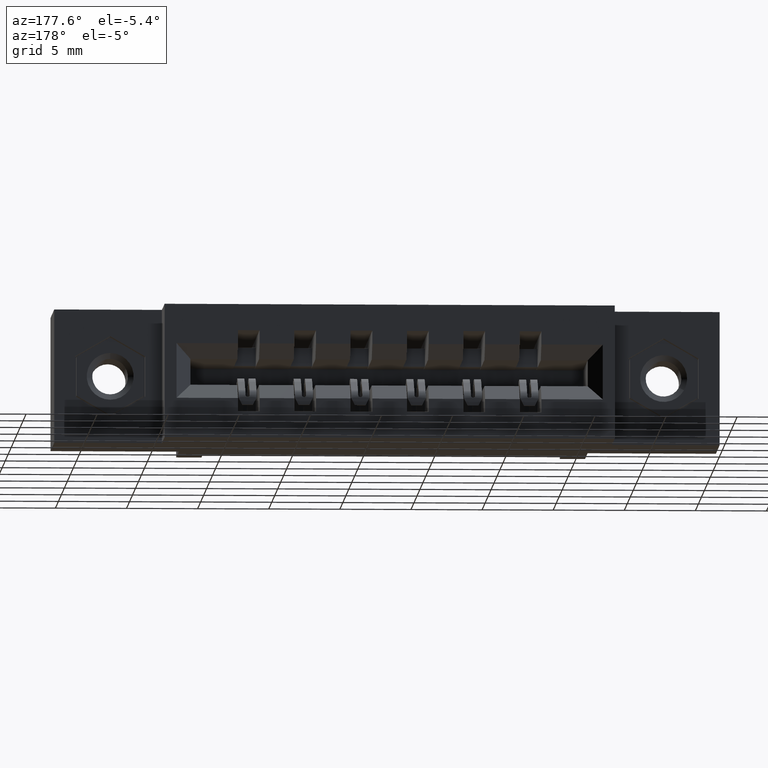
[diagram: clean part render]
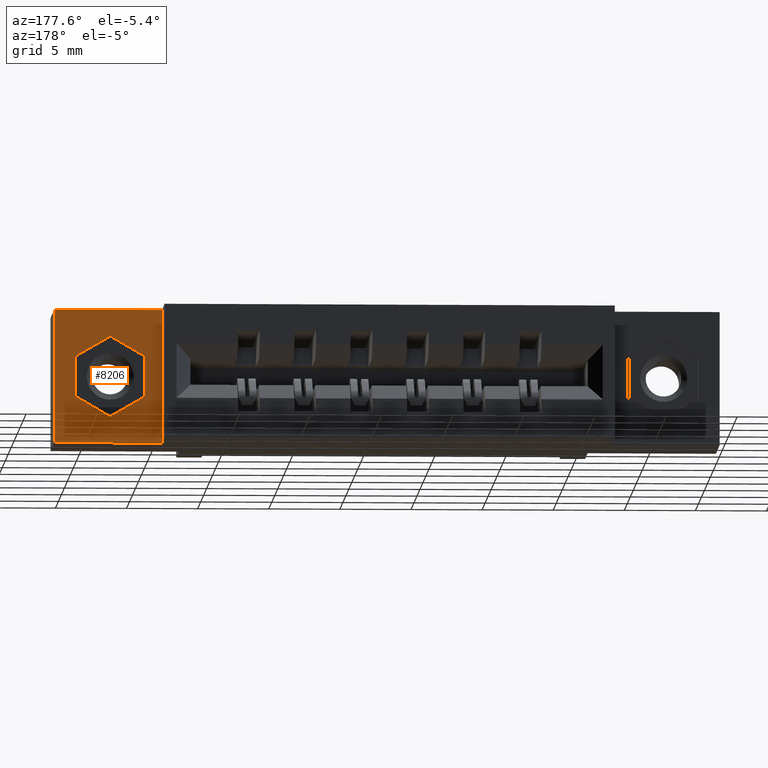
[diagram: same view with one face highlighted and labeled with its STEP entity id]
A machine part, auxiliary view. The second image highlights one B-rep face of the part: STEP entity #8206.
In plain terms, the highlighted planar face has unit normal (0, -1, 0).
Its self-contained STEP definition (entity closure, byte-faithful):
#15 = EDGE_LOOP ( 'NONE', ( #4062, #4189, #4049, #4127 ) ) ;
#24 = CARTESIAN_POINT ( 'NONE',  ( 1.544000000000000700, 0.4199999999999999800, -0.3699999999999999400 ) ) ;
#568 = EDGE_CURVE ( 'NONE', #5231, #8915, #7327, .T. ) ;
#689 = EDGE_CURVE ( 'NONE', #830, #5231, #7293, .T. ) ;
#830 = VERTEX_POINT ( 'NONE', #7220 ) ;
#953 = EDGE_CURVE ( 'NONE', #6691, #830, #6389, .T. ) ;
#988 = EDGE_CURVE ( 'NONE', #3004, #6691, #5707, .T. ) ;
#997 = EDGE_CURVE ( 'NONE', #7923, #8778, #5748, .T. ) ;
#1125 = EDGE_CURVE ( 'NONE', #8915, #3347, #3867, .T. ) ;
#1320 = EDGE_LOOP ( 'NONE', ( #3918, #3962, #3973, #4077, #4081, #4105 ) ) ;
#1369 = DIRECTION ( 'NONE',  ( -0.8660254037844388200, -0.0000000000000000000, 0.4999999999999998300 ) ) ;
#1388 = VERTEX_POINT ( 'NONE', #8368 ) ;
#1913 = CARTESIAN_POINT ( 'NONE',  ( 1.590500000000000900, 0.4199999999999999800, -0.1292856990232011400 ) ) ;
#1995 = CARTESIAN_POINT ( 'NONE',  ( 1.783500000000000800, 0.4199999999999999800, -0.2407143009767988300 ) ) ;
#2150 = EDGE_CURVE ( 'NONE', #1388, #7923, #3799, .T. ) ;
#2290 = DIRECTION ( 'NONE',  ( 0.0000000000000000000, -1.000000000000000000, -0.0000000000000000000 ) ) ;
#2788 = VECTOR ( 'NONE', #7985, 39.37007874015748900 ) ;
#2857 = DIRECTION ( 'NONE',  ( 1.000000000000000000, -0.0000000000000000000, -0.0000000000000000000 ) ) ;
#2867 = LINE ( 'NONE', #7223, #2788 ) ;
#2965 = CARTESIAN_POINT ( 'NONE',  ( 1.687000000000000900, 0.4199999999999999800, -0.07357139804640221200 ) ) ;
#2973 = DIRECTION ( 'NONE',  ( -0.0000000000000000000, -0.0000000000000000000, 1.000000000000000000 ) ) ;
#3004 = VERTEX_POINT ( 'NONE', #10373 ) ;
#3224 = PLANE ( 'NONE',  #6983 ) ;
#3230 = EDGE_CURVE ( 'NONE', #8778, #8670, #3543, .T. ) ;
#3347 = VERTEX_POINT ( 'NONE', #1995 ) ;
#3444 = VECTOR ( 'NONE', #7796, 39.37007874015748100 ) ;
#3491 = LINE ( 'NONE', #7320, #4710 ) ;
#3543 = LINE ( 'NONE', #4354, #3444 ) ;
#3751 = VECTOR ( 'NONE', #4150, 39.37007874015748100 ) ;
#3799 = LINE ( 'NONE', #5929, #4103 ) ;
#3867 = LINE ( 'NONE', #10432, #3751 ) ;
#3918 = ORIENTED_EDGE ( 'NONE', *, *, #8675, .F. ) ;
#3962 = ORIENTED_EDGE ( 'NONE', *, *, #1125, .F. ) ;
#3973 = ORIENTED_EDGE ( 'NONE', *, *, #568, .F. ) ;
#4049 = ORIENTED_EDGE ( 'NONE', *, *, #997, .T. ) ;
#4062 = ORIENTED_EDGE ( 'NONE', *, *, #6371, .T. ) ;
#4065 = DIRECTION ( 'NONE',  ( 0.8660254037844382600, -0.0000000000000000000, 0.5000000000000004400 ) ) ;
#4077 = ORIENTED_EDGE ( 'NONE', *, *, #689, .F. ) ;
#4081 = ORIENTED_EDGE ( 'NONE', *, *, #953, .F. ) ;
#4103 = VECTOR ( 'NONE', #9014, 39.37007874015748100 ) ;
#4105 = ORIENTED_EDGE ( 'NONE', *, *, #988, .F. ) ;
#4127 = ORIENTED_EDGE ( 'NONE', *, *, #3230, .T. ) ;
#4150 = DIRECTION ( 'NONE',  ( -0.0000000000000000000, -0.0000000000000000000, -1.000000000000000000 ) ) ;
#4189 = ORIENTED_EDGE ( 'NONE', *, *, #2150, .T. ) ;
#4261 = CARTESIAN_POINT ( 'NONE',  ( 1.590500000000000900, 0.4199999999999999800, -0.2407143009767990200 ) ) ;
#4354 = CARTESIAN_POINT ( 'NONE',  ( 1.544000000000000700, 0.4199999999999999800, 0.0000000000000000000 ) ) ;
#4710 = VECTOR ( 'NONE', #2857, 39.37007874015748100 ) ;
#4895 = FACE_BOUND ( 'NONE', #1320, .T. ) ;
#4942 = FACE_OUTER_BOUND ( 'NONE', #15, .T. ) ;
#5231 = VERTEX_POINT ( 'NONE', #2965 ) ;
#5696 = VECTOR ( 'NONE', #1369, 39.37007874015748100 ) ;
#5707 = LINE ( 'NONE', #9194, #5696 ) ;
#5748 = LINE ( 'NONE', #9873, #5970 ) ;
#5813 = CARTESIAN_POINT ( 'NONE',  ( 1.783500000000000800, 0.4199999999999999800, -0.1292856990232010800 ) ) ;
#5925 = CARTESIAN_POINT ( 'NONE',  ( 1.544000000000000700, 0.4199999999999999800, 0.0000000000000000000 ) ) ;
#5929 = CARTESIAN_POINT ( 'NONE',  ( 1.842000000000000700, 0.4199999999999999800, 0.0000000000000000000 ) ) ;
#5970 = VECTOR ( 'NONE', #10182, 39.37007874015748100 ) ;
#6160 = CARTESIAN_POINT ( 'NONE',  ( 1.687000000000000900, 0.4199999999999999800, -0.07357139804640221200 ) ) ;
#6213 = VECTOR ( 'NONE', #2973, 39.37007874015748100 ) ;
#6359 = CARTESIAN_POINT ( 'NONE',  ( 1.544000000000000700, 0.4199999999999999800, 0.0000000000000000000 ) ) ;
#6371 = EDGE_CURVE ( 'NONE', #8670, #1388, #3491, .T. ) ;
#6389 = LINE ( 'NONE', #1913, #6213 ) ;
#6499 = CARTESIAN_POINT ( 'NONE',  ( 1.842000000000000700, 0.4200000000000000400, -0.3700000000000000000 ) ) ;
#6691 = VERTEX_POINT ( 'NONE', #4261 ) ;
#6983 = AXIS2_PLACEMENT_3D ( 'NONE', #5925, #2290, #8403 ) ;
#7073 = VECTOR ( 'NONE', #4065, 39.37007874015748900 ) ;
#7220 = CARTESIAN_POINT ( 'NONE',  ( 1.590500000000000900, 0.4199999999999999800, -0.1292856990232011400 ) ) ;
#7223 = CARTESIAN_POINT ( 'NONE',  ( 1.687000000000000900, 0.4199999999999999800, -0.2964286019535978300 ) ) ;
#7293 = LINE ( 'NONE', #6160, #7073 ) ;
#7318 = VECTOR ( 'NONE', #8298, 39.37007874015749600 ) ;
#7320 = CARTESIAN_POINT ( 'NONE',  ( 1.842000000000000700, 0.4199999999999999800, 0.0000000000000000000 ) ) ;
#7327 = LINE ( 'NONE', #9073, #7318 ) ;
#7796 = DIRECTION ( 'NONE',  ( -0.0000000000000000000, -0.0000000000000000000, 1.000000000000000000 ) ) ;
#7923 = VERTEX_POINT ( 'NONE', #6499 ) ;
#7985 = DIRECTION ( 'NONE',  ( -0.8660254037844382600, -0.0000000000000000000, -0.5000000000000004400 ) ) ;
#8206 = ADVANCED_FACE ( 'NONE', ( #4895, #4942 ), #3224, .F. ) ;
#8298 = DIRECTION ( 'NONE',  ( 0.8660254037844384900, -0.0000000000000000000, -0.5000000000000002200 ) ) ;
#8368 = CARTESIAN_POINT ( 'NONE',  ( 1.842000000000000700, 0.4199999999999999800, 0.0000000000000000000 ) ) ;
#8403 = DIRECTION ( 'NONE',  ( 0.0000000000000000000, 0.0000000000000000000, -1.000000000000000000 ) ) ;
#8670 = VERTEX_POINT ( 'NONE', #6359 ) ;
#8675 = EDGE_CURVE ( 'NONE', #3347, #3004, #2867, .T. ) ;
#8778 = VERTEX_POINT ( 'NONE', #24 ) ;
#8915 = VERTEX_POINT ( 'NONE', #5813 ) ;
#9014 = DIRECTION ( 'NONE',  ( 0.0000000000000000000, 0.0000000000000000000, -1.000000000000000000 ) ) ;
#9073 = CARTESIAN_POINT ( 'NONE',  ( 1.783500000000000800, 0.4199999999999999800, -0.1292856990232010800 ) ) ;
#9194 = CARTESIAN_POINT ( 'NONE',  ( 1.590500000000000900, 0.4199999999999999800, -0.2407143009767990200 ) ) ;
#9873 = CARTESIAN_POINT ( 'NONE',  ( 1.842000000000000700, 0.4199999999999999800, -0.3700000000000000000 ) ) ;
#10182 = DIRECTION ( 'NONE',  ( -1.000000000000000000, 0.0000000000000000000, 2.291818786631094000E-016 ) ) ;
#10373 = CARTESIAN_POINT ( 'NONE',  ( 1.687000000000000900, 0.4199999999999999800, -0.2964286019535978300 ) ) ;
#10432 = CARTESIAN_POINT ( 'NONE',  ( 1.783500000000000800, 0.4199999999999999800, -0.2407143009767989100 ) ) ;